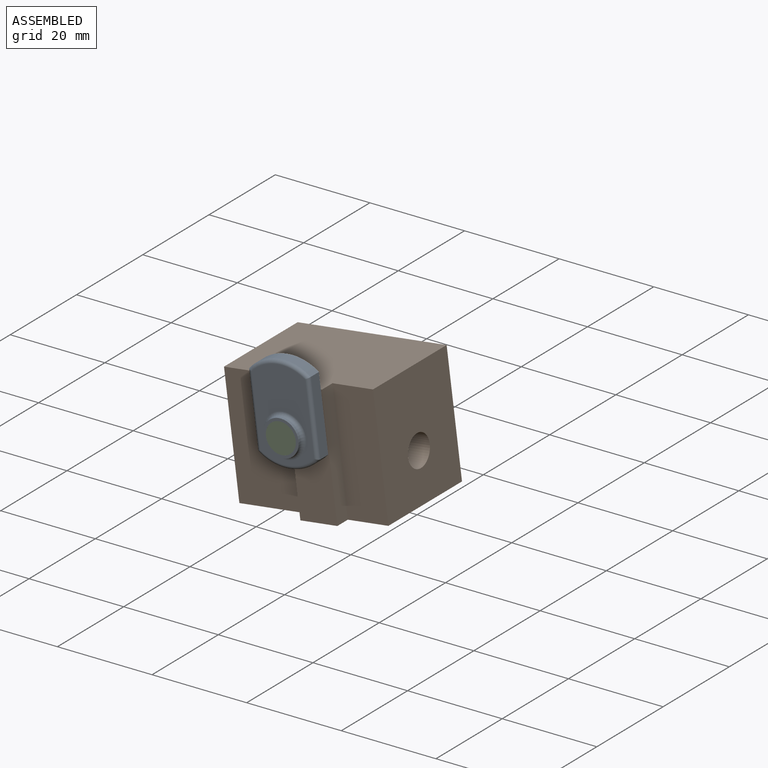
[diagram: assembled view]
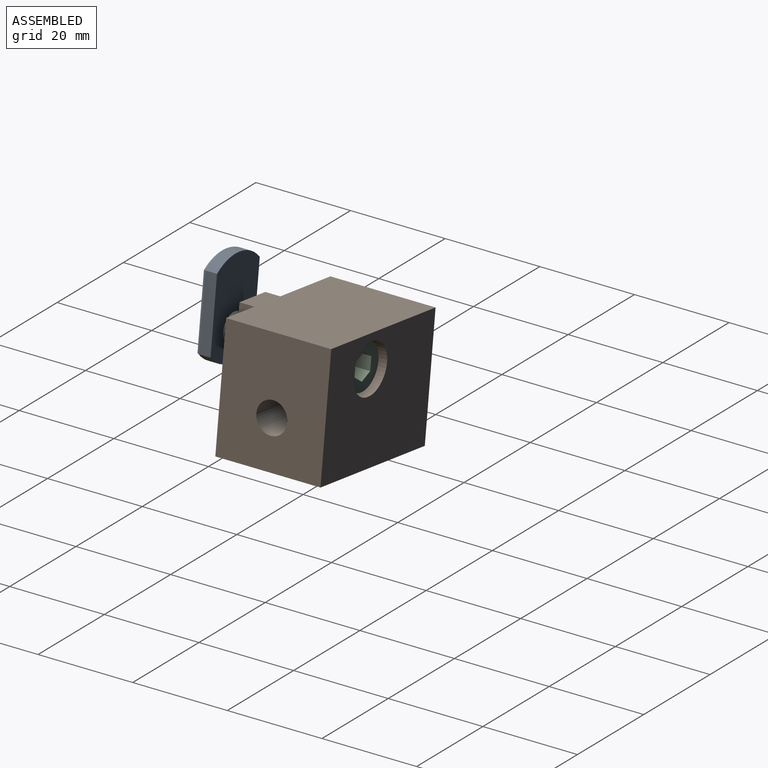
[diagram: assembled view, second angle]
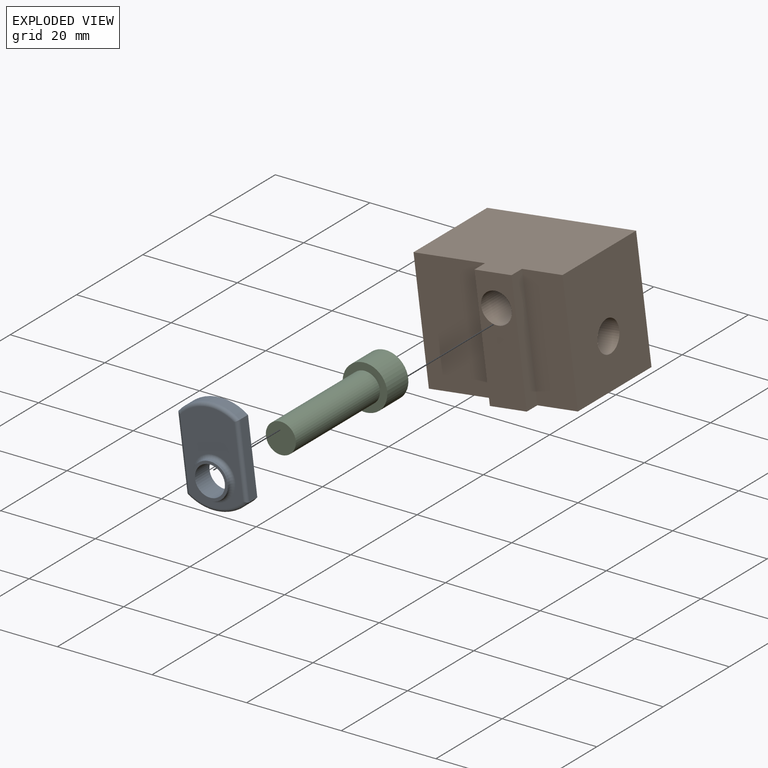
[diagram: exploded view]
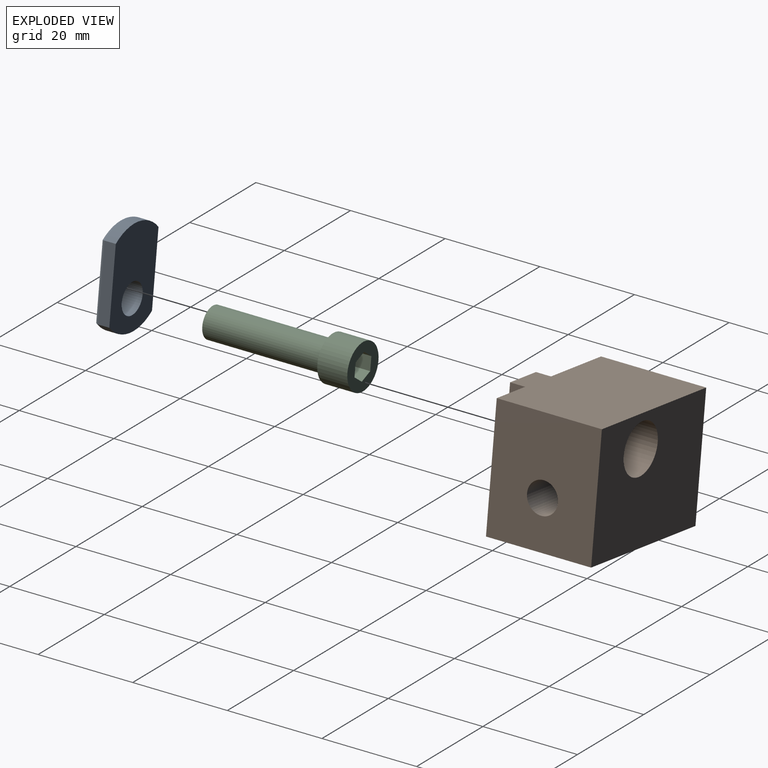
[diagram: exploded view, second angle]
ASSEMBLY  parts=3 mates=2
PART A: 14 faces, bbox 22.1x14.1x4.4 mm
  f0: cylinder r=9.59mm len=13mm, axis (0,0,-1), area 33.8mm2, adj f1,f2,f3,f8
  f1: plane 15.39x2.36mm, normal (0,1,0), area 36.4mm2, adj f0,f3,f4,f5
  f2: torus R=8.83mm, axis (0,0,-1), area 16.2mm2, adj f0,f4,f6,f10
  f3: plane 20.47x13mm, normal (0,0,-1), area 213.9mm2, adj f0,f1,f5,f7,f8
  f4: cylinder r=0.76mm len=15.39mm, axis (1,0,0), area 18mm2, adj f1,f2,f6,f9
  f5: cylinder r=9.59mm len=13mm, axis (0,0,-1), area 33.8mm2, adj f1,f3,f8,f9
  f6: plane 18.95x11.48mm, normal (0,0,1), area 137.6mm2, adj f2,f4,f9,f10,f11
  f7: cylinder r=3.17mm len=6.35mm, axis (0,0,1), area 87.7mm2, adj f3,f12
  f8: plane 15.39x2.36mm, normal (0,-1,0), area 36.4mm2, adj f0,f3,f5,f10
  f9: torus R=8.83mm, axis (0,0,-1), area 16.2mm2, adj f4,f5,f6,f10
  f10: cylinder r=0.76mm len=15.39mm, axis (-1,0,0), area 18mm2, adj f2,f6,f8,f9
  f11: torus R=4.53mm, axis (0,0,-1), area 30.4mm2, adj f6,f13
  f12: plane 7.54x7.54mm, normal (0,0,1), area 13mm2, adj f7,f13
  f13: cylinder r=3.77mm len=7.54mm, axis (0,0,-1), area 12mm2, adj f11,f12
PART B: 14 faces, bbox 31.8x25.4x25.4 mm
  f0: cylinder r=3.26mm len=31.75mm, axis (1,0,0), area 651.1mm2, adj f1,f2
  f1: plane 25.4x22.23mm, normal (-1,0,0), area 531mm2, adj f0,f3,f4,f5,f6
  f2: plane 25.4x22.23mm, normal (1,0,0), area 531mm2, adj f0,f4,f5,f6,f7
  f3: plane 25.4x15.24mm, normal (0,-1,0), area 387.1mm2, adj f1,f5,f6,f8
  f4: plane 31.75x25.4mm, normal (0,1,0), area 722.9mm2, adj f1,f2,f5,f6,f9
  f5: plane 31.75x25.4mm, normal (0,0,1), area 730.6mm2, adj f1,f2,f3,f4,f7,f8,f10,f11
  f6: plane 31.75x25.4mm, normal (0,0,-1), area 730.6mm2, adj f1,f2,f3,f4,f7,f8,f10,f11
  f7: plane 25.4x8.64mm, normal (0,-1,0), area 219.4mm2, adj f2,f5,f6,f11
  f8: plane 25.4x3.18mm, normal (-1,0,0), area 80.6mm2, adj f3,f5,f6,f10
  f9: cylinder r=5.16mm len=10.31mm, axis (0,1,0), area 255.1mm2, adj f4,f12
  f10: plane 25.4x7.87mm, normal (0,-1,0), area 166.5mm2, adj f5,f6,f8,f11,f13
  f11: plane 25.4x3.18mm, normal (1,0,0), area 80.6mm2, adj f5,f6,f7,f10
  f12: plane 10.31x10.31mm, normal (0,1,0), area 50.1mm2, adj f9,f13
  f13: cylinder r=3.26mm len=17.53mm, axis (0,1,0), area 359.4mm2, adj f10,f12
PART C: 12 faces, bbox 9.4x31.8x9.4 mm
  f0: plane 5.51x4.78mm, normal (0,1,0), area 19.7mm2, adj f1,f2,f3,f4,f5,f6
  f1: plane 3.81x2.39mm, normal (-0.87,0,0.5), area 10.5mm2, adj f0,f3,f6,f7
  f2: plane 3.81x2.76mm, normal (0,0,-1), area 10.5mm2, adj f0,f4,f6,f7
  f3: plane 3.81x2.76mm, normal (0,0,1), area 10.5mm2, adj f0,f1,f5,f7
  f4: plane 3.81x2.39mm, normal (0.87,0,-0.5), area 10.5mm2, adj f0,f2,f5,f7
  f5: plane 3.81x2.39mm, normal (0.87,0,0.5), area 10.5mm2, adj f0,f3,f4,f7
  f6: plane 3.81x2.39mm, normal (-0.87,0,-0.5), area 10.5mm2, adj f0,f1,f2,f7
  f7: plane 9.45x9.45mm, normal (0,1,0), area 50.4mm2, adj f1,f2,f3,f4,f5,f6,f8
  f8: cylinder r=4.72mm len=9.45mm, axis (0,-1,0), area 188.5mm2, adj f7,f9
  f9: plane 9.45x9.45mm, normal (0,-1,0), area 38.5mm2, adj f8,f10
  f10: cylinder r=3.17mm len=25.4mm, axis (0,-1,0), area 506.7mm2, adj f9,f11
  f11: plane 6.35x6.35mm, normal (0,-1,0), area 31.7mm2, adj f10
PLACE A rot(axis=(0.53,-0.6,0.6),124.3deg) t=(16.92,14.93,10.82)mm
PLACE B rot(axis=(0,-1,0),7.3deg) t=(-6.85,24.71,-4.71)mm
PLACE C rot(axis=(0,-1,0),97.3deg) t=(9.65,13.66,16.29)mm
MATE fastened A.f7 <-> C.f8  axis (0,-1,0) through (9.65,13.66,16.29)mm
MATE revolute B.f9 <-> C.f8  axis (0,1,0) through (9.65,39.06,16.29)mm
